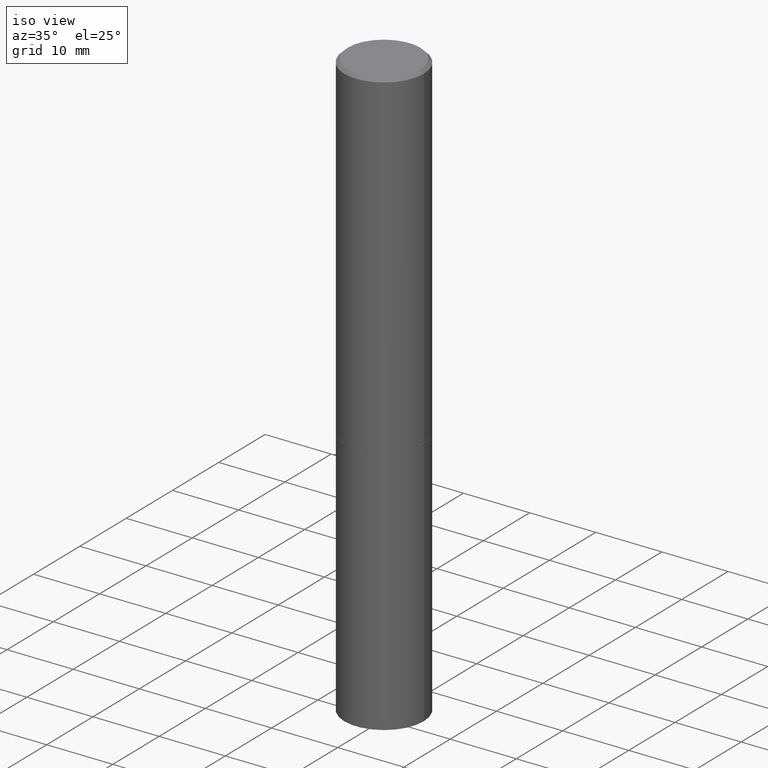
[diagram: clean part render]
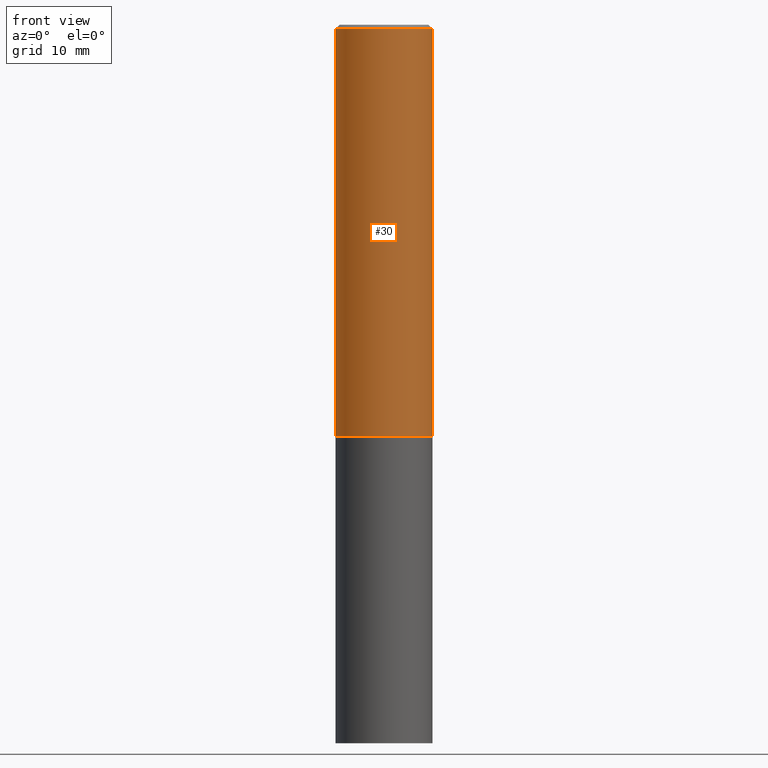
[diagram: tour spotlight — one face highlighted and labeled with its STEP entity id]
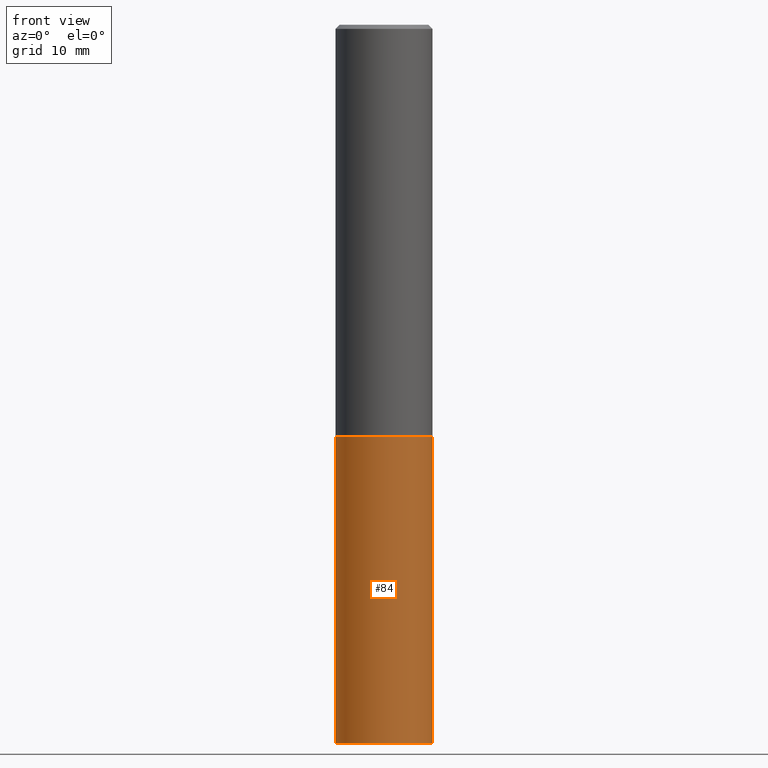
[diagram: tour spotlight — one face highlighted and labeled with its STEP entity id]
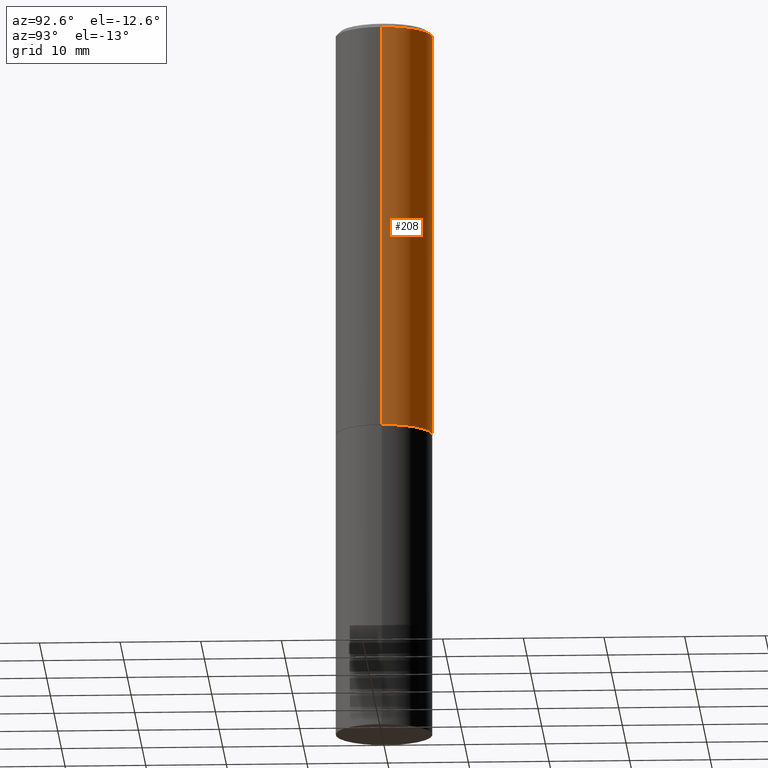
[diagram: tour spotlight — one face highlighted and labeled with its STEP entity id]
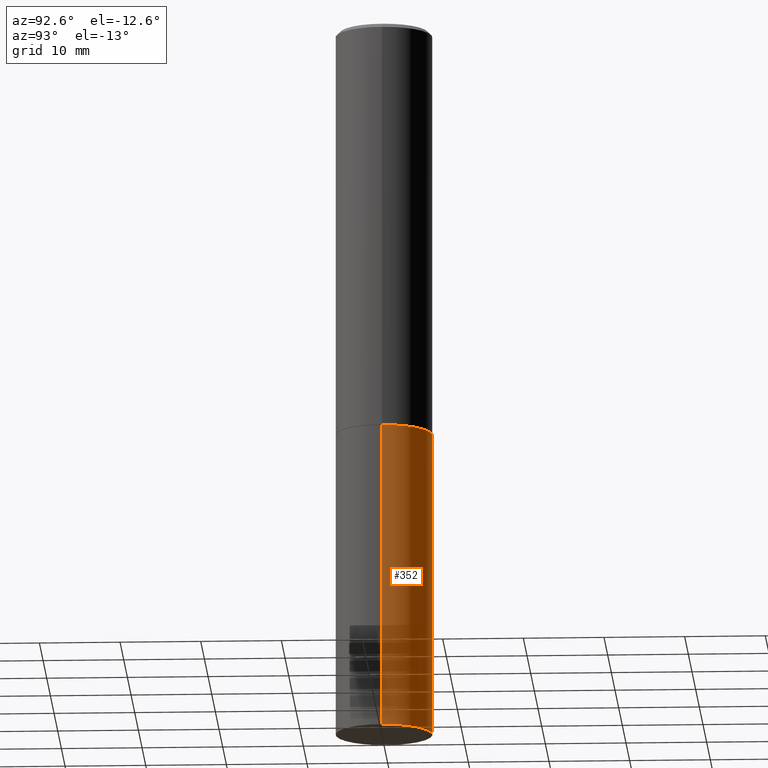
[diagram: tour spotlight — one face highlighted and labeled with its STEP entity id]
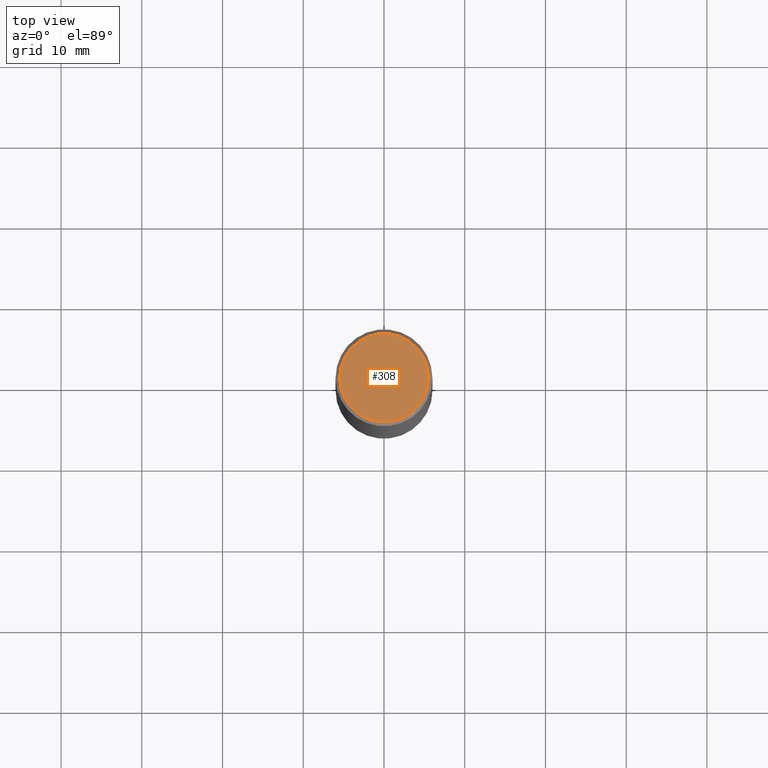
[diagram: tour spotlight — one face highlighted and labeled with its STEP entity id]
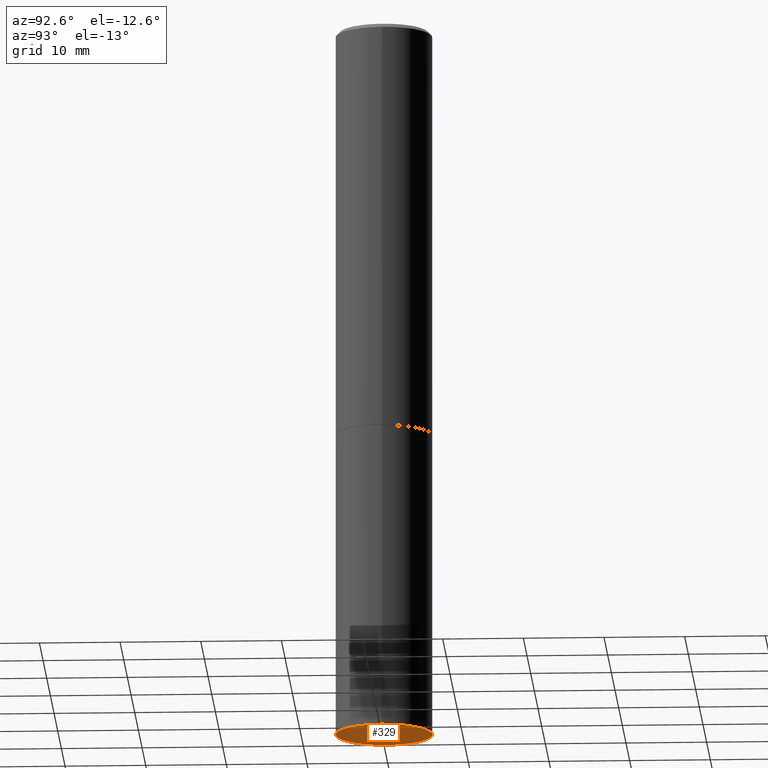
[diagram: tour spotlight — one face highlighted and labeled with its STEP entity id]
A machine part: a face-by-face anatomy tour. The part has 12 B-rep faces; the first image is the clean iso view, then the 6 largest visible faces are spotlighted one at a time (largest first), each with its STEP entity span.

Face 1 — front view, entity #30. In plain terms, the highlighted cylindrical surface (partial cylindrical patch) has radius 5.9995 mm, axis along (-0, 0, 1).
Definition (entity closure, byte-faithful):
#2 = CARTESIAN_POINT ( 'NONE',  ( 0.000000000000000000, 0.000000000000000000, 0.000000000000000000 ) ) ;
#4 = CIRCLE ( 'NONE', #346, 0.2361999999999999933 ) ;
#9 = DIRECTION ( 'NONE',  ( -2.445468806185136597E-29, 3.491481338843145583E-15, 1.000000000000000000 ) ) ;
#11 = EDGE_CURVE ( 'NONE', #101, #330, #345, .T. ) ;
#24 = ORIENTED_EDGE ( 'NONE', *, *, #262, .F. ) ;
#29 = DIRECTION ( 'NONE',  ( 1.000000000000000000, -6.982962677686265133E-15, 0.000000000000000000 ) ) ;
#30 = ADVANCED_FACE ( 'NONE', ( #315 ), #58, .T. ) ;
#36 = CARTESIAN_POINT ( 'NONE',  ( 4.907566800252331482E-29, -7.006704750790423614E-15, -2.006799999999999695 ) ) ;
#39 = DIRECTION ( 'NONE',  ( -2.445468806185136597E-29, 3.491481338843145583E-15, 1.000000000000000000 ) ) ;
#58 = CYLINDRICAL_SURFACE ( 'NONE', #232, 0.2361999999999998545 ) ;
#68 = DIRECTION ( 'NONE',  ( 1.000000000000000000, -6.982962677686266711E-15, 0.000000000000000000 ) ) ;
#74 = CARTESIAN_POINT ( 'NONE',  ( 0.2361999999999997157, -1.690279253850496996E-15, -0.02000000000000003164 ) ) ;
#81 = ORIENTED_EDGE ( 'NONE', *, *, #146, .T. ) ;
#82 = ORIENTED_EDGE ( 'NONE', *, *, #11, .T. ) ;
#101 = VERTEX_POINT ( 'NONE', #261 ) ;
#120 = VECTOR ( 'NONE', #211, 39.37007874015748143 ) ;
#124 = DIRECTION ( 'NONE',  ( 1.000000000000000000, -6.982962677686266711E-15, 4.876176775795935793E-29 ) ) ;
#127 = CIRCLE ( 'NONE', #350, 0.2361999999999997157 ) ;
#129 = CARTESIAN_POINT ( 'NONE',  ( -0.2361999999999998545, 1.678301941865355605E-15, -1.161852468318208056E-29 ) ) ;
#130 = CARTESIAN_POINT ( 'NONE',  ( -0.2362000000000000210, -1.859965246918283512E-15, -2.006799999999999695 ) ) ;
#143 = CARTESIAN_POINT ( 'NONE',  ( -0.2361999999999997157, 1.579546157692631255E-15, -0.02000000000000003164 ) ) ;
#146 = EDGE_CURVE ( 'NONE', #336, #101, #4, .T. ) ;
#157 = DIRECTION ( 'NONE',  ( -2.445468806185136597E-29, 3.491481338843145583E-15, 1.000000000000000000 ) ) ;
#167 = VERTEX_POINT ( 'NONE', #143 ) ;
#183 = CARTESIAN_POINT ( 'NONE',  ( 4.890937612370280165E-31, -6.982962677686301470E-17, -0.02000000000000003164 ) ) ;
#200 = EDGE_CURVE ( 'NONE', #336, #167, #213, .T. ) ;
#211 = DIRECTION ( 'NONE',  ( -2.445468806185136877E-29, 3.491481338843145188E-15, 1.000000000000000000 ) ) ;
#213 = LINE ( 'NONE', #129, #120 ) ;
#232 = AXIS2_PLACEMENT_3D ( 'NONE', #2, #9, #124 ) ;
#234 = CARTESIAN_POINT ( 'NONE',  ( 0.2361999999999998545, -1.649375784469495145E-15, 1.151752954442999387E-29 ) ) ;
#249 = ORIENTED_EDGE ( 'NONE', *, *, #200, .F. ) ;
#254 = DIRECTION ( 'NONE',  ( -2.445468806185136877E-29, 3.491481338843145188E-15, 1.000000000000000000 ) ) ;
#261 = CARTESIAN_POINT ( 'NONE',  ( 0.2361999999999999933, -8.656080535259919350E-15, -2.006799999999999695 ) ) ;
#262 = EDGE_CURVE ( 'NONE', #167, #330, #127, .T. ) ;
#272 = VECTOR ( 'NONE', #254, 39.37007874015748143 ) ;
#309 = EDGE_LOOP ( 'NONE', ( #249, #81, #82, #24 ) ) ;
#315 = FACE_OUTER_BOUND ( 'NONE', #309, .T. ) ;
#330 = VERTEX_POINT ( 'NONE', #74 ) ;
#336 = VERTEX_POINT ( 'NONE', #130 ) ;
#345 = LINE ( 'NONE', #234, #272 ) ;
#346 = AXIS2_PLACEMENT_3D ( 'NONE', #36, #39, #29 ) ;
#350 = AXIS2_PLACEMENT_3D ( 'NONE', #183, #157, #68 ) ;

Face 2 — front view, entity #84. In plain terms, the highlighted cylindrical surface (partial cylindrical patch) has radius 5.9995 mm, axis along (-0, 0, 1).
Definition (entity closure, byte-faithful):
#13 = VECTOR ( 'NONE', #207, 39.37007874015748143 ) ;
#16 = DIRECTION ( 'NONE',  ( -2.445468806185136597E-29, 3.491481338843145583E-15, 1.000000000000000000 ) ) ;
#42 = DIRECTION ( 'NONE',  ( -2.445468806185136597E-29, 3.491481338843145583E-15, 1.000000000000000000 ) ) ;
#49 = AXIS2_PLACEMENT_3D ( 'NONE', #324, #42, #125 ) ;
#71 = AXIS2_PLACEMENT_3D ( 'NONE', #116, #349, #179 ) ;
#84 = ADVANCED_FACE ( 'NONE', ( #265 ), #285, .T. ) ;
#87 = CARTESIAN_POINT ( 'NONE',  ( -0.2361999999999999933, -7.943696905785525451E-15, -2.007800000000000029 ) ) ;
#90 = EDGE_CURVE ( 'NONE', #192, #165, #148, .T. ) ;
#96 = CARTESIAN_POINT ( 'NONE',  ( 0.2361999999999999933, -8.659572016598763935E-15, -2.007800000000000029 ) ) ;
#108 = ORIENTED_EDGE ( 'NONE', *, *, #121, .T. ) ;
#116 = CARTESIAN_POINT ( 'NONE',  ( 0.000000000000000000, 0.000000000000000000, 0.000000000000000000 ) ) ;
#121 = EDGE_CURVE ( 'NONE', #364, #306, #288, .T. ) ;
#125 = DIRECTION ( 'NONE',  ( 1.000000000000000000, -6.982962677686269077E-15, 0.000000000000000000 ) ) ;
#133 = CIRCLE ( 'NONE', #49, 0.2361999999999999933 ) ;
#138 = ORIENTED_EDGE ( 'NONE', *, *, #90, .F. ) ;
#148 = LINE ( 'NONE', #266, #296 ) ;
#150 = CARTESIAN_POINT ( 'NONE',  ( 0.2361999999999999933, -1.649375784469496131E-15, 1.151752954443000088E-29 ) ) ;
#165 = VERTEX_POINT ( 'NONE', #87 ) ;
#173 = AXIS2_PLACEMENT_3D ( 'NONE', #242, #16, #354 ) ;
#179 = DIRECTION ( 'NONE',  ( 1.000000000000000000, -6.982962677686266711E-15, 4.876176775795936353E-29 ) ) ;
#180 = EDGE_CURVE ( 'NONE', #165, #306, #133, .T. ) ;
#192 = VERTEX_POINT ( 'NONE', #209 ) ;
#204 = EDGE_CURVE ( 'NONE', #192, #364, #225, .T. ) ;
#207 = DIRECTION ( 'NONE',  ( -2.445468806185136877E-29, 3.491481338843145188E-15, 1.000000000000000000 ) ) ;
#209 = CARTESIAN_POINT ( 'NONE',  ( -0.2361999999999999933, -7.943696905785525451E-15, -3.503899999999999793 ) ) ;
#225 = CIRCLE ( 'NONE', #173, 0.2361999999999999933 ) ;
#227 = DIRECTION ( 'NONE',  ( -2.445468806185136877E-29, 3.491481338843145188E-15, 1.000000000000000000 ) ) ;
#242 = CARTESIAN_POINT ( 'NONE',  ( 8.568678149992099474E-29, -1.223380146317249786E-14, -3.503899999999999793 ) ) ;
#265 = FACE_OUTER_BOUND ( 'NONE', #270, .T. ) ;
#266 = CARTESIAN_POINT ( 'NONE',  ( -0.2361999999999999933, 1.678301941865356591E-15, -1.161852468318208757E-29 ) ) ;
#270 = EDGE_LOOP ( 'NONE', ( #138, #301, #108, #304 ) ) ;
#285 = CYLINDRICAL_SURFACE ( 'NONE', #71, 0.2361999999999999933 ) ;
#288 = LINE ( 'NONE', #150, #13 ) ;
#296 = VECTOR ( 'NONE', #227, 39.37007874015748143 ) ;
#301 = ORIENTED_EDGE ( 'NONE', *, *, #204, .T. ) ;
#303 = CARTESIAN_POINT ( 'NONE',  ( 0.2361999999999999933, -1.388317724764199281E-14, -3.503899999999999793 ) ) ;
#304 = ORIENTED_EDGE ( 'NONE', *, *, #180, .F. ) ;
#306 = VERTEX_POINT ( 'NONE', #96 ) ;
#324 = CARTESIAN_POINT ( 'NONE',  ( 4.910012269058516525E-29, -7.010196232129267410E-15, -2.007800000000000029 ) ) ;
#349 = DIRECTION ( 'NONE',  ( -2.445468806185136597E-29, 3.491481338843145583E-15, 1.000000000000000000 ) ) ;
#354 = DIRECTION ( 'NONE',  ( 1.000000000000000000, -6.982962677686265133E-15, 0.000000000000000000 ) ) ;
#364 = VERTEX_POINT ( 'NONE', #303 ) ;

Face 3 — auxiliary view, entity #208. In plain terms, the highlighted cylindrical surface (partial cylindrical patch) has radius 5.9995 mm, axis along (-0, 0, 1).
Definition (entity closure, byte-faithful):
#5 = DIRECTION ( 'NONE',  ( -2.445468806185136597E-29, 3.491481338843145583E-15, 1.000000000000000000 ) ) ;
#7 = CIRCLE ( 'NONE', #290, 0.2361999999999997157 ) ;
#11 = EDGE_CURVE ( 'NONE', #101, #330, #345, .T. ) ;
#12 = CARTESIAN_POINT ( 'NONE',  ( 4.890937612370280165E-31, -6.982962677686301470E-17, -0.02000000000000003164 ) ) ;
#22 = EDGE_CURVE ( 'NONE', #101, #336, #319, .T. ) ;
#45 = ORIENTED_EDGE ( 'NONE', *, *, #118, .F. ) ;
#72 = CYLINDRICAL_SURFACE ( 'NONE', #168, 0.2361999999999998545 ) ;
#74 = CARTESIAN_POINT ( 'NONE',  ( 0.2361999999999997157, -1.690279253850496996E-15, -0.02000000000000003164 ) ) ;
#75 = ORIENTED_EDGE ( 'NONE', *, *, #22, .T. ) ;
#99 = CARTESIAN_POINT ( 'NONE',  ( 0.000000000000000000, 0.000000000000000000, 0.000000000000000000 ) ) ;
#101 = VERTEX_POINT ( 'NONE', #261 ) ;
#118 = EDGE_CURVE ( 'NONE', #330, #167, #7, .T. ) ;
#120 = VECTOR ( 'NONE', #211, 39.37007874015748143 ) ;
#129 = CARTESIAN_POINT ( 'NONE',  ( -0.2361999999999998545, 1.678301941865355605E-15, -1.161852468318208056E-29 ) ) ;
#130 = CARTESIAN_POINT ( 'NONE',  ( -0.2362000000000000210, -1.859965246918283512E-15, -2.006799999999999695 ) ) ;
#143 = CARTESIAN_POINT ( 'NONE',  ( -0.2361999999999997157, 1.579546157692631255E-15, -0.02000000000000003164 ) ) ;
#149 = DIRECTION ( 'NONE',  ( 1.000000000000000000, -6.982962677686265133E-15, 0.000000000000000000 ) ) ;
#167 = VERTEX_POINT ( 'NONE', #143 ) ;
#168 = AXIS2_PLACEMENT_3D ( 'NONE', #99, #331, #188 ) ;
#188 = DIRECTION ( 'NONE',  ( 1.000000000000000000, -6.982962677686266711E-15, 4.876176775795935793E-29 ) ) ;
#190 = AXIS2_PLACEMENT_3D ( 'NONE', #311, #5, #149 ) ;
#197 = DIRECTION ( 'NONE',  ( -2.445468806185136597E-29, 3.491481338843145583E-15, 1.000000000000000000 ) ) ;
#200 = EDGE_CURVE ( 'NONE', #336, #167, #213, .T. ) ;
#203 = DIRECTION ( 'NONE',  ( 1.000000000000000000, -6.982962677686266711E-15, 0.000000000000000000 ) ) ;
#208 = ADVANCED_FACE ( 'NONE', ( #246 ), #72, .T. ) ;
#211 = DIRECTION ( 'NONE',  ( -2.445468806185136877E-29, 3.491481338843145188E-15, 1.000000000000000000 ) ) ;
#213 = LINE ( 'NONE', #129, #120 ) ;
#214 = ORIENTED_EDGE ( 'NONE', *, *, #11, .F. ) ;
#234 = CARTESIAN_POINT ( 'NONE',  ( 0.2361999999999998545, -1.649375784469495145E-15, 1.151752954442999387E-29 ) ) ;
#246 = FACE_OUTER_BOUND ( 'NONE', #366, .T. ) ;
#254 = DIRECTION ( 'NONE',  ( -2.445468806185136877E-29, 3.491481338843145188E-15, 1.000000000000000000 ) ) ;
#261 = CARTESIAN_POINT ( 'NONE',  ( 0.2361999999999999933, -8.656080535259919350E-15, -2.006799999999999695 ) ) ;
#272 = VECTOR ( 'NONE', #254, 39.37007874015748143 ) ;
#290 = AXIS2_PLACEMENT_3D ( 'NONE', #12, #197, #203 ) ;
#311 = CARTESIAN_POINT ( 'NONE',  ( 4.907566800252331482E-29, -7.006704750790423614E-15, -2.006799999999999695 ) ) ;
#319 = CIRCLE ( 'NONE', #190, 0.2361999999999999933 ) ;
#330 = VERTEX_POINT ( 'NONE', #74 ) ;
#331 = DIRECTION ( 'NONE',  ( -2.445468806185136597E-29, 3.491481338843145583E-15, 1.000000000000000000 ) ) ;
#332 = ORIENTED_EDGE ( 'NONE', *, *, #200, .T. ) ;
#336 = VERTEX_POINT ( 'NONE', #130 ) ;
#345 = LINE ( 'NONE', #234, #272 ) ;
#366 = EDGE_LOOP ( 'NONE', ( #75, #332, #45, #214 ) ) ;

Face 4 — auxiliary view, entity #352. In plain terms, the highlighted cylindrical surface (partial cylindrical patch) has radius 5.9995 mm, axis along (-0, 0, 1).
Definition (entity closure, byte-faithful):
#13 = VECTOR ( 'NONE', #207, 39.37007874015748143 ) ;
#27 = ORIENTED_EDGE ( 'NONE', *, *, #97, .T. ) ;
#37 = CIRCLE ( 'NONE', #57, 0.2361999999999999933 ) ;
#46 = CARTESIAN_POINT ( 'NONE',  ( 0.000000000000000000, 0.000000000000000000, 0.000000000000000000 ) ) ;
#52 = EDGE_CURVE ( 'NONE', #306, #165, #37, .T. ) ;
#57 = AXIS2_PLACEMENT_3D ( 'NONE', #123, #236, #224 ) ;
#76 = DIRECTION ( 'NONE',  ( -2.445468806185136597E-29, 3.491481338843145583E-15, 1.000000000000000000 ) ) ;
#87 = CARTESIAN_POINT ( 'NONE',  ( -0.2361999999999999933, -7.943696905785525451E-15, -2.007800000000000029 ) ) ;
#89 = DIRECTION ( 'NONE',  ( -2.445468806185136597E-29, 3.491481338843145583E-15, 1.000000000000000000 ) ) ;
#90 = EDGE_CURVE ( 'NONE', #192, #165, #148, .T. ) ;
#94 = DIRECTION ( 'NONE',  ( 1.000000000000000000, -6.982962677686265133E-15, 0.000000000000000000 ) ) ;
#96 = CARTESIAN_POINT ( 'NONE',  ( 0.2361999999999999933, -8.659572016598763935E-15, -2.007800000000000029 ) ) ;
#97 = EDGE_CURVE ( 'NONE', #364, #192, #342, .T. ) ;
#121 = EDGE_CURVE ( 'NONE', #364, #306, #288, .T. ) ;
#123 = CARTESIAN_POINT ( 'NONE',  ( 4.910012269058516525E-29, -7.010196232129267410E-15, -2.007800000000000029 ) ) ;
#135 = DIRECTION ( 'NONE',  ( 1.000000000000000000, -6.982962677686266711E-15, 4.876176775795936353E-29 ) ) ;
#148 = LINE ( 'NONE', #266, #296 ) ;
#150 = CARTESIAN_POINT ( 'NONE',  ( 0.2361999999999999933, -1.649375784469496131E-15, 1.151752954443000088E-29 ) ) ;
#152 = AXIS2_PLACEMENT_3D ( 'NONE', #176, #89, #94 ) ;
#158 = EDGE_LOOP ( 'NONE', ( #27, #273, #216, #359 ) ) ;
#165 = VERTEX_POINT ( 'NONE', #87 ) ;
#176 = CARTESIAN_POINT ( 'NONE',  ( 8.568678149992099474E-29, -1.223380146317249786E-14, -3.503899999999999793 ) ) ;
#186 = FACE_OUTER_BOUND ( 'NONE', #158, .T. ) ;
#192 = VERTEX_POINT ( 'NONE', #209 ) ;
#207 = DIRECTION ( 'NONE',  ( -2.445468806185136877E-29, 3.491481338843145188E-15, 1.000000000000000000 ) ) ;
#209 = CARTESIAN_POINT ( 'NONE',  ( -0.2361999999999999933, -7.943696905785525451E-15, -3.503899999999999793 ) ) ;
#216 = ORIENTED_EDGE ( 'NONE', *, *, #52, .F. ) ;
#224 = DIRECTION ( 'NONE',  ( 1.000000000000000000, -6.982962677686269077E-15, 0.000000000000000000 ) ) ;
#227 = DIRECTION ( 'NONE',  ( -2.445468806185136877E-29, 3.491481338843145188E-15, 1.000000000000000000 ) ) ;
#236 = DIRECTION ( 'NONE',  ( -2.445468806185136597E-29, 3.491481338843145583E-15, 1.000000000000000000 ) ) ;
#266 = CARTESIAN_POINT ( 'NONE',  ( -0.2361999999999999933, 1.678301941865356591E-15, -1.161852468318208757E-29 ) ) ;
#273 = ORIENTED_EDGE ( 'NONE', *, *, #90, .T. ) ;
#288 = LINE ( 'NONE', #150, #13 ) ;
#296 = VECTOR ( 'NONE', #227, 39.37007874015748143 ) ;
#300 = CYLINDRICAL_SURFACE ( 'NONE', #363, 0.2361999999999999933 ) ;
#303 = CARTESIAN_POINT ( 'NONE',  ( 0.2361999999999999933, -1.388317724764199281E-14, -3.503899999999999793 ) ) ;
#306 = VERTEX_POINT ( 'NONE', #96 ) ;
#342 = CIRCLE ( 'NONE', #152, 0.2361999999999999933 ) ;
#352 = ADVANCED_FACE ( 'NONE', ( #186 ), #300, .T. ) ;
#359 = ORIENTED_EDGE ( 'NONE', *, *, #121, .F. ) ;
#363 = AXIS2_PLACEMENT_3D ( 'NONE', #46, #76, #135 ) ;
#364 = VERTEX_POINT ( 'NONE', #303 ) ;

Face 5 — top view, entity #308. In plain terms, the highlighted planar face has unit normal (0, -0, -1).
Definition (entity closure, byte-faithful):
#14 = DIRECTION ( 'NONE',  ( -2.445468806185136597E-29, 3.491481338843145583E-15, 1.000000000000000000 ) ) ;
#20 = CARTESIAN_POINT ( 'NONE',  ( 1.509716530915768746E-15, 0.2161999999999997257, -7.527240092128370190E-16 ) ) ;
#44 = DIRECTION ( 'NONE',  ( 2.438088387897960049E-29, -3.491481338843145188E-15, -1.000000000000000000 ) ) ;
#63 = DIRECTION ( 'NONE',  ( 1.000000000000000000, -6.982962677686267499E-15, 4.876217060660161841E-29 ) ) ;
#64 = CARTESIAN_POINT ( 'NONE',  ( -1.043851414335219820E-46, 1.490343170380447200E-32, 4.268512490100411279E-18 ) ) ;
#79 = CIRCLE ( 'NONE', #310, 0.2161999999999997257 ) ;
#103 = EDGE_CURVE ( 'NONE', #185, #299, #159, .T. ) ;
#107 = AXIS2_PLACEMENT_3D ( 'NONE', #20, #44, #243 ) ;
#131 = PLANE ( 'NONE',  #107 ) ;
#159 = CIRCLE ( 'NONE', #244, 0.2161999999999997257 ) ;
#185 = VERTEX_POINT ( 'NONE', #269 ) ;
#189 = EDGE_LOOP ( 'NONE', ( #250, #281 ) ) ;
#240 = CARTESIAN_POINT ( 'NONE',  ( 0.2161999999999997257, -1.586759460484350016E-15, 4.268512490111238857E-18 ) ) ;
#243 = DIRECTION ( 'NONE',  ( -1.000000000000000000, 6.982962677686265922E-15, -4.876176775795935793E-29 ) ) ;
#244 = AXIS2_PLACEMENT_3D ( 'NONE', #64, #293, #63 ) ;
#248 = EDGE_CURVE ( 'NONE', #299, #185, #79, .T. ) ;
#250 = ORIENTED_EDGE ( 'NONE', *, *, #103, .T. ) ;
#269 = CARTESIAN_POINT ( 'NONE',  ( -0.2161999999999997257, 1.544631344304200197E-15, 4.268512490089730842E-18 ) ) ;
#274 = CARTESIAN_POINT ( 'NONE',  ( -1.043851414335219820E-46, 1.490343170380447200E-32, 4.268512490100411279E-18 ) ) ;
#281 = ORIENTED_EDGE ( 'NONE', *, *, #248, .T. ) ;
#293 = DIRECTION ( 'NONE',  ( -2.445468806185136597E-29, 3.491481338843145583E-15, 1.000000000000000000 ) ) ;
#299 = VERTEX_POINT ( 'NONE', #240 ) ;
#308 = ADVANCED_FACE ( 'NONE', ( #323 ), #131, .F. ) ;
#310 = AXIS2_PLACEMENT_3D ( 'NONE', #274, #14, #326 ) ;
#323 = FACE_OUTER_BOUND ( 'NONE', #189, .T. ) ;
#326 = DIRECTION ( 'NONE',  ( 1.000000000000000000, -6.982962677686267499E-15, 4.876217060660161841E-29 ) ) ;

Face 6 — auxiliary view, entity #329. In plain terms, the highlighted planar face has unit normal (0, -0, -1).
Definition (entity closure, byte-faithful):
#16 = DIRECTION ( 'NONE',  ( -2.445468806185136597E-29, 3.491481338843145583E-15, 1.000000000000000000 ) ) ;
#53 = ORIENTED_EDGE ( 'NONE', *, *, #204, .F. ) ;
#62 = AXIS2_PLACEMENT_3D ( 'NONE', #181, #100, #297 ) ;
#89 = DIRECTION ( 'NONE',  ( -2.445468806185136597E-29, 3.491481338843145583E-15, 1.000000000000000000 ) ) ;
#94 = DIRECTION ( 'NONE',  ( 1.000000000000000000, -6.982962677686265133E-15, 0.000000000000000000 ) ) ;
#97 = EDGE_CURVE ( 'NONE', #364, #192, #342, .T. ) ;
#100 = DIRECTION ( 'NONE',  ( 2.438088387897960049E-29, -3.491481338843145188E-15, -1.000000000000000000 ) ) ;
#132 = EDGE_LOOP ( 'NONE', ( #161, #53 ) ) ;
#152 = AXIS2_PLACEMENT_3D ( 'NONE', #176, #89, #94 ) ;
#161 = ORIENTED_EDGE ( 'NONE', *, *, #97, .F. ) ;
#173 = AXIS2_PLACEMENT_3D ( 'NONE', #242, #16, #354 ) ;
#176 = CARTESIAN_POINT ( 'NONE',  ( 8.568678149992099474E-29, -1.223380146317249786E-14, -3.503899999999999793 ) ) ;
#181 = CARTESIAN_POINT ( 'NONE',  ( 1.649375784469581525E-15, 0.2361999999999877808, -3.503900000000000681 ) ) ;
#192 = VERTEX_POINT ( 'NONE', #209 ) ;
#204 = EDGE_CURVE ( 'NONE', #192, #364, #225, .T. ) ;
#209 = CARTESIAN_POINT ( 'NONE',  ( -0.2361999999999999933, -7.943696905785525451E-15, -3.503899999999999793 ) ) ;
#210 = FACE_OUTER_BOUND ( 'NONE', #132, .T. ) ;
#225 = CIRCLE ( 'NONE', #173, 0.2361999999999999933 ) ;
#242 = CARTESIAN_POINT ( 'NONE',  ( 8.568678149992099474E-29, -1.223380146317249786E-14, -3.503899999999999793 ) ) ;
#297 = DIRECTION ( 'NONE',  ( -1.000000000000000000, 6.982962677686265922E-15, -4.876176775795935793E-29 ) ) ;
#303 = CARTESIAN_POINT ( 'NONE',  ( 0.2361999999999999933, -1.388317724764199281E-14, -3.503899999999999793 ) ) ;
#329 = ADVANCED_FACE ( 'NONE', ( #210 ), #353, .T. ) ;
#342 = CIRCLE ( 'NONE', #152, 0.2361999999999999933 ) ;
#353 = PLANE ( 'NONE',  #62 ) ;
#354 = DIRECTION ( 'NONE',  ( 1.000000000000000000, -6.982962677686265133E-15, 0.000000000000000000 ) ) ;
#364 = VERTEX_POINT ( 'NONE', #303 ) ;